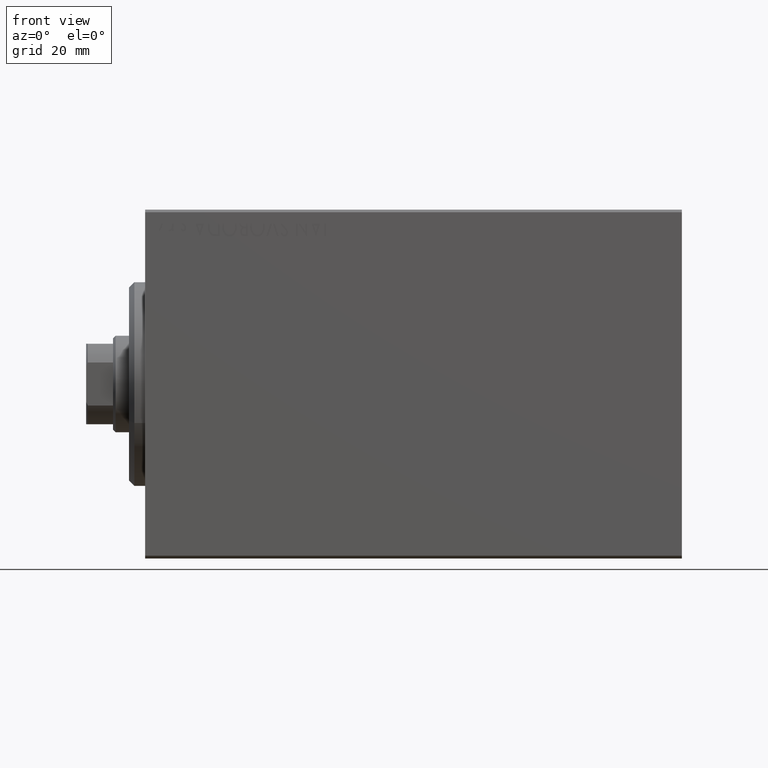
[diagram: clean part render]
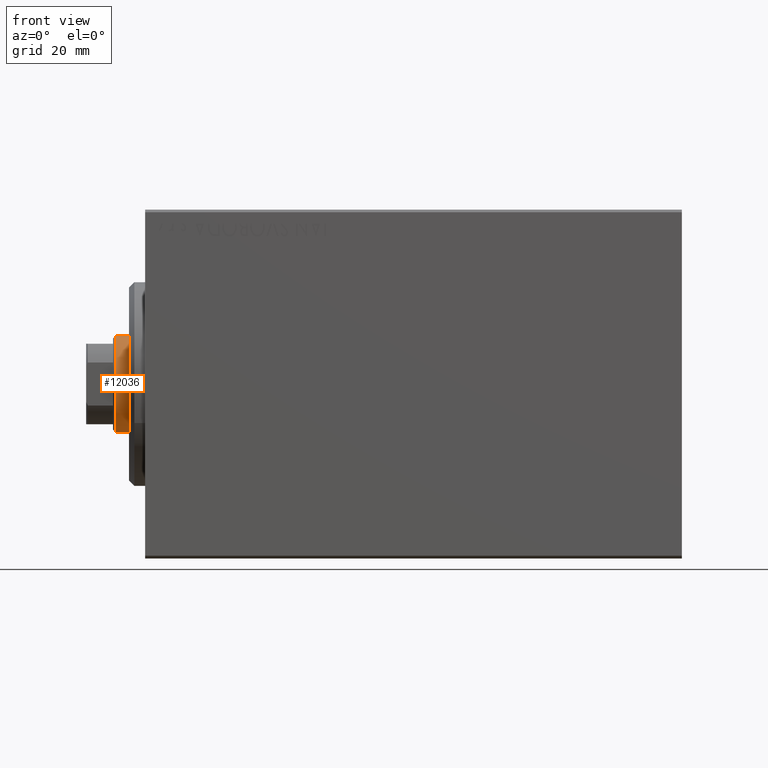
[diagram: same view with one face highlighted and labeled with its STEP entity id]
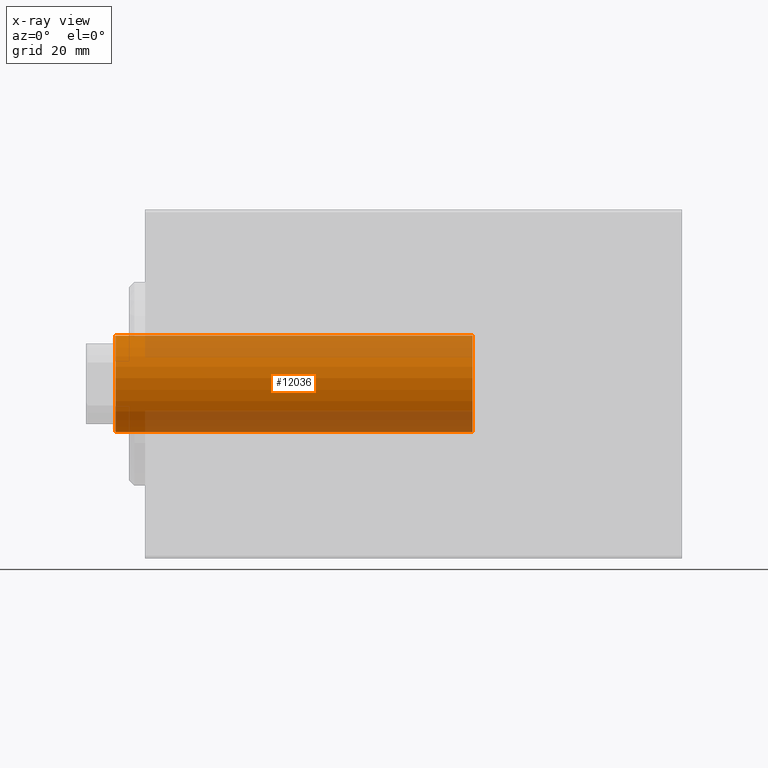
[diagram: x-ray of the same camera — body ghosted, the highlighted face saturated]
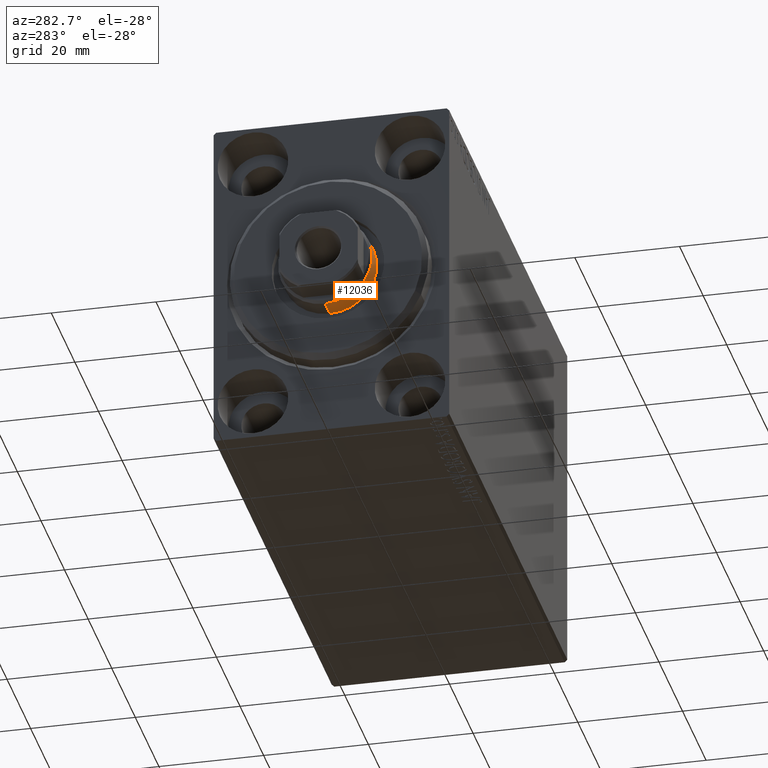
[diagram: same view with one face highlighted and labeled with its STEP entity id]
A machine part, front view. The second image highlights one B-rep face of the part: STEP entity #12036.
The next image is the same camera in x-ray: the body ghosted, the highlighted face saturated — about 41% of this face is hidden behind the body in this view.
A second angle (auxiliary view) of the same face is appended — the face is thin or edge-on in the first view.
In plain terms, the highlighted cylindrical surface (partial cylindrical patch) has radius 9 mm, axis along (1, -0, -0).
Its self-contained STEP definition (entity closure, byte-faithful):
#2106 = CARTESIAN_POINT ( 'NONE',  ( 0.000000000000000000, 0.000000000000000000, 99.49999999999998579 ) ) ;
#4372 = DIRECTION ( 'NONE',  ( -0.000000000000000000, -0.000000000000000000, -1.000000000000000000 ) ) ;
#4376 = DIRECTION ( 'NONE',  ( 1.000000000000000000, 0.000000000000000000, 0.000000000000000000 ) ) ;
#5024 = FACE_OUTER_BOUND ( 'NONE', #17905, .T. ) ;
#5044 = EDGE_CURVE ( 'NONE', #22466, #31563, #37070, .T. ) ;
#6302 = ORIENTED_EDGE ( 'NONE', *, *, #18852, .T. ) ;
#7895 = CIRCLE ( 'NONE', #37607, 9.000000000000000000 ) ;
#9206 = CARTESIAN_POINT ( 'NONE',  ( -9.000000000000000000, 0.000000000000000000, 99.49999999999998579 ) ) ;
#10112 = CARTESIAN_POINT ( 'NONE',  ( 9.000000000000000000, 1.102182119232617714E-15, 33.00000000000000000 ) ) ;
#11445 = CARTESIAN_POINT ( 'NONE',  ( 0.000000000000000000, 0.000000000000000000, 100.0000000000000000 ) ) ;
#12036 = ADVANCED_FACE ( 'NONE', ( #5024 ), #32054, .T. ) ;
#12864 = ORIENTED_EDGE ( 'NONE', *, *, #14452, .F. ) ;
#13152 = DIRECTION ( 'NONE',  ( -0.000000000000000000, -0.000000000000000000, -1.000000000000000000 ) ) ;
#14452 = EDGE_CURVE ( 'NONE', #42080, #37371, #14921, .T. ) ;
#14921 = LINE ( 'NONE', #41729, #19092 ) ;
#17055 = CIRCLE ( 'NONE', #35464, 9.000000000000000000 ) ;
#17905 = EDGE_LOOP ( 'NONE', ( #12864, #6302, #32963, #32096 ) ) ;
#18117 = DIRECTION ( 'NONE',  ( 0.000000000000000000, 0.000000000000000000, 1.000000000000000000 ) ) ;
#18852 = EDGE_CURVE ( 'NONE', #42080, #22466, #17055, .T. ) ;
#19092 = VECTOR ( 'NONE', #42182, 1000.000000000000000 ) ;
#19806 = CARTESIAN_POINT ( 'NONE',  ( -9.000000000000000000, 0.000000000000000000, 100.0000000000000000 ) ) ;
#20243 = CARTESIAN_POINT ( 'NONE',  ( 9.000000000000000000, 1.102182119232617714E-15, 99.49999999999998579 ) ) ;
#22466 = VERTEX_POINT ( 'NONE', #9206 ) ;
#24350 = EDGE_CURVE ( 'NONE', #31563, #37371, #7895, .T. ) ;
#26252 = DIRECTION ( 'NONE',  ( 1.000000000000000000, 0.000000000000000000, 0.000000000000000000 ) ) ;
#28292 = CARTESIAN_POINT ( 'NONE',  ( 0.000000000000000000, 0.000000000000000000, 33.00000000000000000 ) ) ;
#28603 = CARTESIAN_POINT ( 'NONE',  ( -9.000000000000000000, 0.000000000000000000, 33.00000000000000000 ) ) ;
#30016 = DIRECTION ( 'NONE',  ( 0.000000000000000000, 0.000000000000000000, -1.000000000000000000 ) ) ;
#31563 = VERTEX_POINT ( 'NONE', #28603 ) ;
#32054 = CYLINDRICAL_SURFACE ( 'NONE', #34609, 9.000000000000000000 ) ;
#32096 = ORIENTED_EDGE ( 'NONE', *, *, #24350, .T. ) ;
#32963 = ORIENTED_EDGE ( 'NONE', *, *, #5044, .T. ) ;
#34609 = AXIS2_PLACEMENT_3D ( 'NONE', #11445, #4372, #38470 ) ;
#35464 = AXIS2_PLACEMENT_3D ( 'NONE', #2106, #30016, #26252 ) ;
#37070 = LINE ( 'NONE', #19806, #39708 ) ;
#37371 = VERTEX_POINT ( 'NONE', #10112 ) ;
#37607 = AXIS2_PLACEMENT_3D ( 'NONE', #28292, #18117, #4376 ) ;
#38470 = DIRECTION ( 'NONE',  ( -1.000000000000000000, 0.000000000000000000, 0.000000000000000000 ) ) ;
#39708 = VECTOR ( 'NONE', #13152, 1000.000000000000000 ) ;
#41729 = CARTESIAN_POINT ( 'NONE',  ( 9.000000000000000000, 1.102182119232617714E-15, 100.0000000000000000 ) ) ;
#42080 = VERTEX_POINT ( 'NONE', #20243 ) ;
#42182 = DIRECTION ( 'NONE',  ( -0.000000000000000000, -0.000000000000000000, -1.000000000000000000 ) ) ;